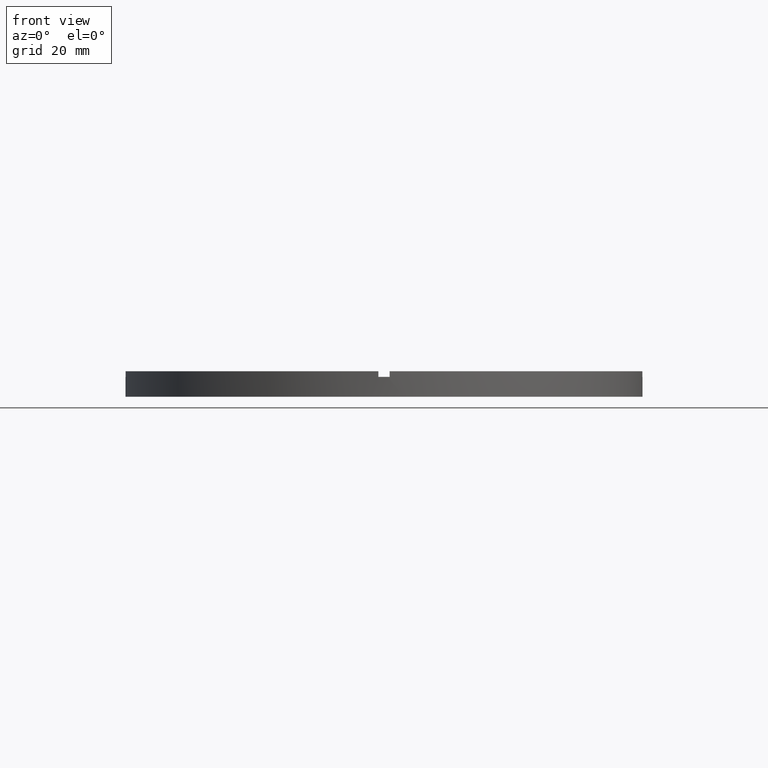
[diagram: clean part render]
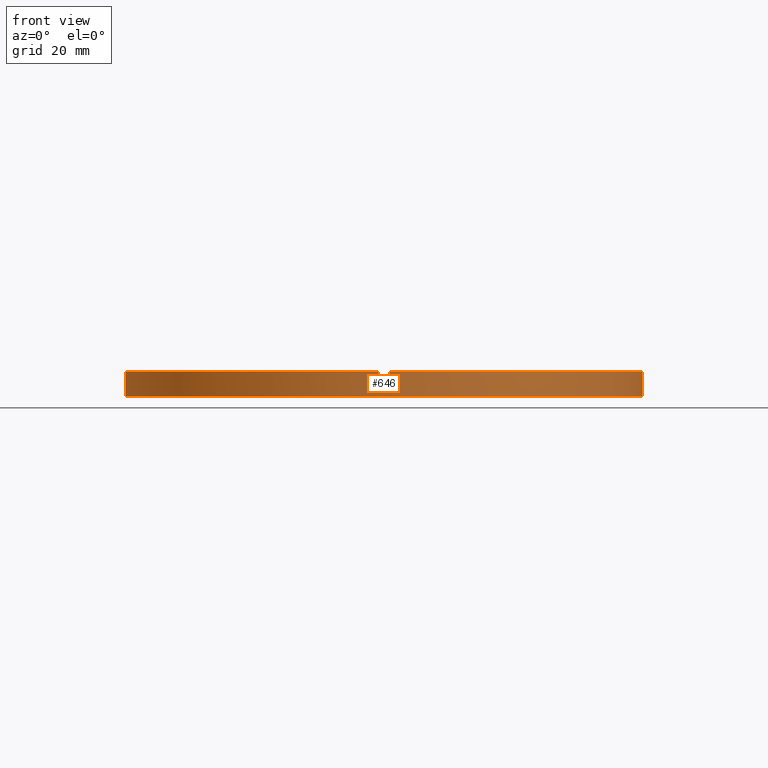
[diagram: same view with one face highlighted and labeled with its STEP entity id]
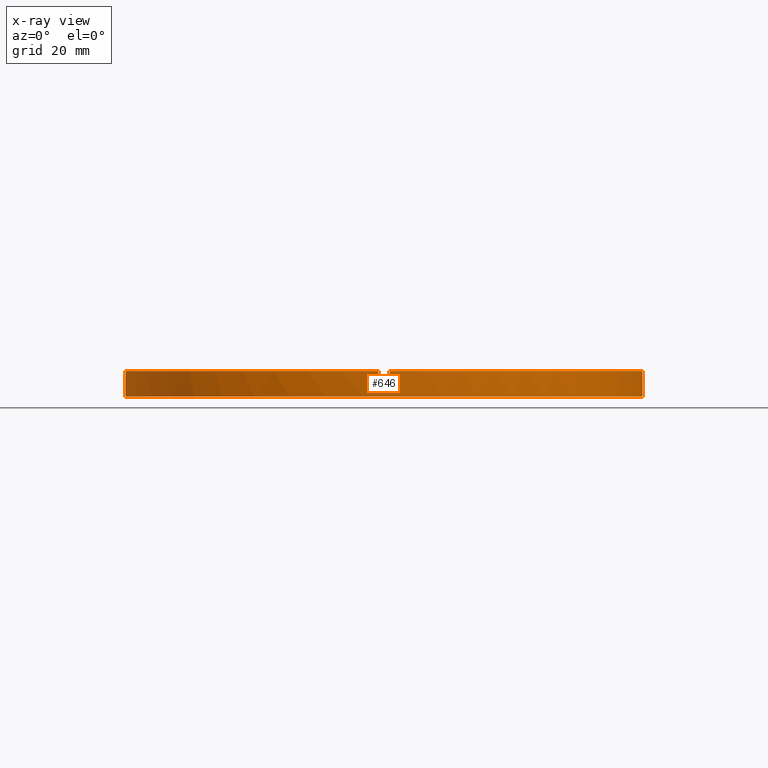
[diagram: x-ray of the same camera — body ghosted, the highlighted face saturated]
A machine part, front view. The second image highlights one B-rep face of the part: STEP entity #646.
The next image is the same camera in x-ray: the body ghosted, the highlighted face saturated — about 0% of this face is hidden behind the body in this view.
In plain terms, the highlighted cylindrical surface (partial cylindrical patch) has radius 45.5 mm, axis along (-0, -0, -1).
Its self-contained STEP definition (entity closure, byte-faithful):
#3 = LINE ( 'NONE', #134, #529 ) ;
#4 = LINE ( 'NONE', #275, #259 ) ;
#5 = DIRECTION ( 'NONE',  ( -0.000000000000000000, -0.000000000000000000, -1.000000000000000000 ) ) ;
#24 = CARTESIAN_POINT ( 'NONE',  ( 0.000000000000000000, 0.000000000000000000, 4.500000000000000000 ) ) ;
#28 = AXIS2_PLACEMENT_3D ( 'NONE', #336, #99, #93 ) ;
#42 = CARTESIAN_POINT ( 'NONE',  ( -45.48900966167541782, -1.000000000000029976, 4.500000000000000000 ) ) ;
#54 = DIRECTION ( 'NONE',  ( 0.000000000000000000, 0.000000000000000000, 1.000000000000000000 ) ) ;
#57 = LINE ( 'NONE', #403, #301 ) ;
#61 = DIRECTION ( 'NONE',  ( 0.000000000000000000, 0.000000000000000000, 1.000000000000000000 ) ) ;
#78 = CARTESIAN_POINT ( 'NONE',  ( -45.50000000000000000, 0.000000000000000000, 0.000000000000000000 ) ) ;
#86 = AXIS2_PLACEMENT_3D ( 'NONE', #24, #508, #671 ) ;
#93 = DIRECTION ( 'NONE',  ( 1.000000000000000000, 0.000000000000000000, 0.000000000000000000 ) ) ;
#99 = DIRECTION ( 'NONE',  ( 0.000000000000000000, 0.000000000000000000, 1.000000000000000000 ) ) ;
#113 = VERTEX_POINT ( 'NONE', #605 ) ;
#128 = CARTESIAN_POINT ( 'NONE',  ( 45.50000000000000000, 5.572142936120457130E-15, 3.499999999999999556 ) ) ;
#134 = CARTESIAN_POINT ( 'NONE',  ( 45.48900966167541782, -1.000000000000156097, 4.500000000000000000 ) ) ;
#137 = ORIENTED_EDGE ( 'NONE', *, *, #608, .T. ) ;
#138 = CARTESIAN_POINT ( 'NONE',  ( 0.9999999999998421263, -45.48900966167542492, 4.500000000000000000 ) ) ;
#147 = ORIENTED_EDGE ( 'NONE', *, *, #501, .F. ) ;
#148 = EDGE_LOOP ( 'NONE', ( #402, #147, #494, #347, #177, #375, #224, #419, #759, #726, #196, #137 ) ) ;
#150 = DIRECTION ( 'NONE',  ( 0.000000000000000000, 0.000000000000000000, 1.000000000000000000 ) ) ;
#153 = EDGE_CURVE ( 'NONE', #431, #172, #3, .T. ) ;
#164 = CYLINDRICAL_SURFACE ( 'NONE', #627, 45.50000000000000000 ) ;
#172 = VERTEX_POINT ( 'NONE', #545 ) ;
#177 = ORIENTED_EDGE ( 'NONE', *, *, #205, .T. ) ;
#189 = CARTESIAN_POINT ( 'NONE',  ( 0.000000000000000000, 0.000000000000000000, 0.000000000000000000 ) ) ;
#196 = ORIENTED_EDGE ( 'NONE', *, *, #218, .T. ) ;
#197 = VERTEX_POINT ( 'NONE', #42 ) ;
#201 = FACE_OUTER_BOUND ( 'NONE', #148, .T. ) ;
#203 = VERTEX_POINT ( 'NONE', #715 ) ;
#205 = EDGE_CURVE ( 'NONE', #113, #477, #263, .T. ) ;
#218 = EDGE_CURVE ( 'NONE', #667, #729, #4, .T. ) ;
#224 = ORIENTED_EDGE ( 'NONE', *, *, #502, .T. ) ;
#248 = CARTESIAN_POINT ( 'NONE',  ( -45.50000000000000000, 0.000000000000000000, 3.499999999999999556 ) ) ;
#250 = CIRCLE ( 'NONE', #741, 45.50000000000000000 ) ;
#252 = LINE ( 'NONE', #773, #772 ) ;
#259 = VECTOR ( 'NONE', #376, 1000.000000000000000 ) ;
#263 = LINE ( 'NONE', #138, #533 ) ;
#270 = CARTESIAN_POINT ( 'NONE',  ( 45.48900966167541782, -1.000000000000156097, 3.499999999999999556 ) ) ;
#271 = DIRECTION ( 'NONE',  ( -0.000000000000000000, -0.000000000000000000, -1.000000000000000000 ) ) ;
#275 = CARTESIAN_POINT ( 'NONE',  ( -45.50000000000000000, 0.000000000000000000, 4.500000000000000000 ) ) ;
#301 = VECTOR ( 'NONE', #315, 1000.000000000000000 ) ;
#303 = CARTESIAN_POINT ( 'NONE',  ( 45.50000000000000000, 5.572142936120457130E-15, 0.000000000000000000 ) ) ;
#315 = DIRECTION ( 'NONE',  ( -0.000000000000000000, -0.000000000000000000, -1.000000000000000000 ) ) ;
#326 = CARTESIAN_POINT ( 'NONE',  ( 0.000000000000000000, 0.000000000000000000, 3.499999999999999556 ) ) ;
#330 = DIRECTION ( 'NONE',  ( -0.000000000000000000, -0.000000000000000000, -1.000000000000000000 ) ) ;
#336 = CARTESIAN_POINT ( 'NONE',  ( 0.000000000000000000, 0.000000000000000000, 3.499999999999999556 ) ) ;
#339 = CARTESIAN_POINT ( 'NONE',  ( 0.000000000000000000, 0.000000000000000000, 3.499999999999999556 ) ) ;
#340 = EDGE_CURVE ( 'NONE', #739, #736, #252, .T. ) ;
#347 = ORIENTED_EDGE ( 'NONE', *, *, #351, .F. ) ;
#351 = EDGE_CURVE ( 'NONE', #113, #172, #514, .T. ) ;
#369 = EDGE_CURVE ( 'NONE', #716, #477, #250, .T. ) ;
#375 = ORIENTED_EDGE ( 'NONE', *, *, #369, .F. ) ;
#376 = DIRECTION ( 'NONE',  ( -0.000000000000000000, -0.000000000000000000, -1.000000000000000000 ) ) ;
#385 = EDGE_CURVE ( 'NONE', #667, #203, #781, .T. ) ;
#396 = DIRECTION ( 'NONE',  ( -0.000000000000000000, 0.000000000000000000, 1.000000000000000000 ) ) ;
#402 = ORIENTED_EDGE ( 'NONE', *, *, #340, .F. ) ;
#403 = CARTESIAN_POINT ( 'NONE',  ( -45.48900966167541782, -1.000000000000029976, 4.500000000000000000 ) ) ;
#407 = DIRECTION ( 'NONE',  ( -1.000000000000000000, 0.000000000000000000, 0.000000000000000000 ) ) ;
#415 = CARTESIAN_POINT ( 'NONE',  ( -1.000000000000157874, -45.48900966167541782, 3.499999999999999556 ) ) ;
#419 = ORIENTED_EDGE ( 'NONE', *, *, #666, .F. ) ;
#431 = VERTEX_POINT ( 'NONE', #270 ) ;
#456 = VECTOR ( 'NONE', #54, 1000.000000000000000 ) ;
#473 = CIRCLE ( 'NONE', #693, 45.50000000000000000 ) ;
#477 = VERTEX_POINT ( 'NONE', #593 ) ;
#494 = ORIENTED_EDGE ( 'NONE', *, *, #153, .T. ) ;
#499 = AXIS2_PLACEMENT_3D ( 'NONE', #189, #620, #753 ) ;
#501 = EDGE_CURVE ( 'NONE', #431, #739, #473, .T. ) ;
#502 = EDGE_CURVE ( 'NONE', #716, #669, #706, .T. ) ;
#508 = DIRECTION ( 'NONE',  ( 0.000000000000000000, 0.000000000000000000, 1.000000000000000000 ) ) ;
#514 = CIRCLE ( 'NONE', #536, 45.50000000000000000 ) ;
#528 = DIRECTION ( 'NONE',  ( 0.000000000000000000, 0.000000000000000000, 1.000000000000000000 ) ) ;
#529 = VECTOR ( 'NONE', #61, 1000.000000000000000 ) ;
#533 = VECTOR ( 'NONE', #271, 1000.000000000000000 ) ;
#536 = AXIS2_PLACEMENT_3D ( 'NONE', #539, #150, #594 ) ;
#539 = CARTESIAN_POINT ( 'NONE',  ( 0.000000000000000000, 0.000000000000000000, 4.500000000000000000 ) ) ;
#545 = CARTESIAN_POINT ( 'NONE',  ( 45.48900966167541782, -1.000000000000156097, 4.500000000000000000 ) ) ;
#593 = CARTESIAN_POINT ( 'NONE',  ( 0.9999999999998421263, -45.48900966167542492, 3.499999999999999556 ) ) ;
#594 = DIRECTION ( 'NONE',  ( 1.000000000000000000, 0.000000000000000000, 0.000000000000000000 ) ) ;
#605 = CARTESIAN_POINT ( 'NONE',  ( 0.9999999999998421263, -45.48900966167542492, 4.500000000000000000 ) ) ;
#608 = EDGE_CURVE ( 'NONE', #729, #736, #710, .T. ) ;
#620 = DIRECTION ( 'NONE',  ( 0.000000000000000000, 0.000000000000000000, 1.000000000000000000 ) ) ;
#627 = AXIS2_PLACEMENT_3D ( 'NONE', #751, #5, #407 ) ;
#646 = ADVANCED_FACE ( 'NONE', ( #201 ), #164, .T. ) ;
#666 = EDGE_CURVE ( 'NONE', #197, #669, #701, .T. ) ;
#667 = VERTEX_POINT ( 'NONE', #248 ) ;
#669 = VERTEX_POINT ( 'NONE', #756 ) ;
#671 = DIRECTION ( 'NONE',  ( 1.000000000000000000, 0.000000000000000000, 0.000000000000000000 ) ) ;
#693 = AXIS2_PLACEMENT_3D ( 'NONE', #326, #528, #698 ) ;
#698 = DIRECTION ( 'NONE',  ( 1.000000000000000000, 0.000000000000000000, 0.000000000000000000 ) ) ;
#700 = DIRECTION ( 'NONE',  ( 1.000000000000000000, 0.000000000000000000, 0.000000000000000000 ) ) ;
#701 = CIRCLE ( 'NONE', #86, 45.50000000000000000 ) ;
#706 = LINE ( 'NONE', #778, #456 ) ;
#710 = CIRCLE ( 'NONE', #499, 45.50000000000000000 ) ;
#715 = CARTESIAN_POINT ( 'NONE',  ( -45.48900966167541782, -1.000000000000029976, 3.499999999999999556 ) ) ;
#716 = VERTEX_POINT ( 'NONE', #415 ) ;
#718 = EDGE_CURVE ( 'NONE', #197, #203, #57, .T. ) ;
#726 = ORIENTED_EDGE ( 'NONE', *, *, #385, .F. ) ;
#729 = VERTEX_POINT ( 'NONE', #78 ) ;
#736 = VERTEX_POINT ( 'NONE', #303 ) ;
#739 = VERTEX_POINT ( 'NONE', #128 ) ;
#741 = AXIS2_PLACEMENT_3D ( 'NONE', #339, #396, #700 ) ;
#751 = CARTESIAN_POINT ( 'NONE',  ( 0.000000000000000000, 0.000000000000000000, 4.500000000000000000 ) ) ;
#753 = DIRECTION ( 'NONE',  ( 1.000000000000000000, 0.000000000000000000, 0.000000000000000000 ) ) ;
#756 = CARTESIAN_POINT ( 'NONE',  ( -1.000000000000157874, -45.48900966167541782, 4.500000000000000000 ) ) ;
#759 = ORIENTED_EDGE ( 'NONE', *, *, #718, .T. ) ;
#772 = VECTOR ( 'NONE', #330, 1000.000000000000000 ) ;
#773 = CARTESIAN_POINT ( 'NONE',  ( 45.50000000000000000, 5.572142936120457130E-15, 4.500000000000000000 ) ) ;
#778 = CARTESIAN_POINT ( 'NONE',  ( -1.000000000000157874, -45.48900966167541782, 4.500000000000000000 ) ) ;
#781 = CIRCLE ( 'NONE', #28, 45.50000000000000000 ) ;